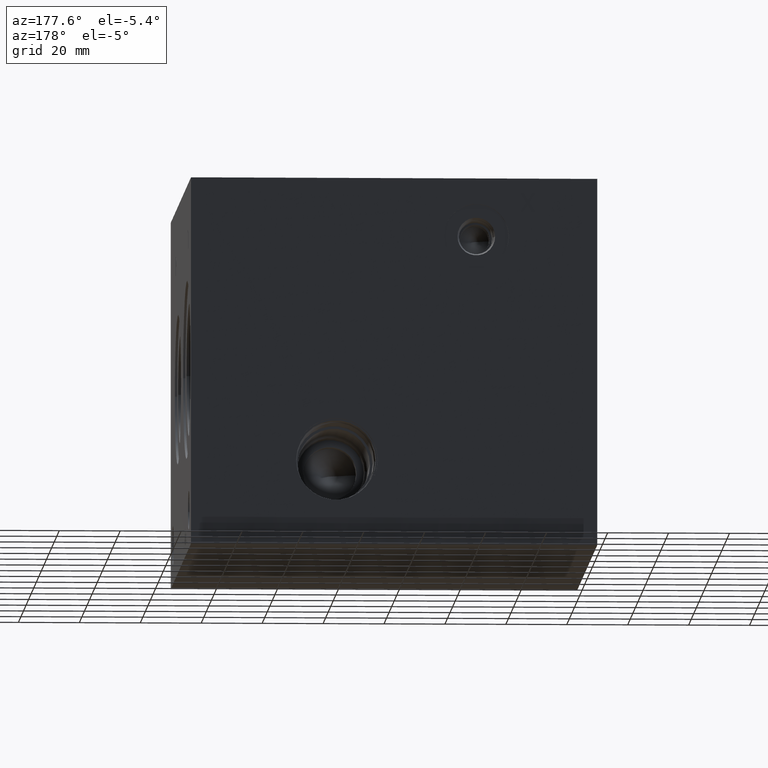
[diagram: clean part render]
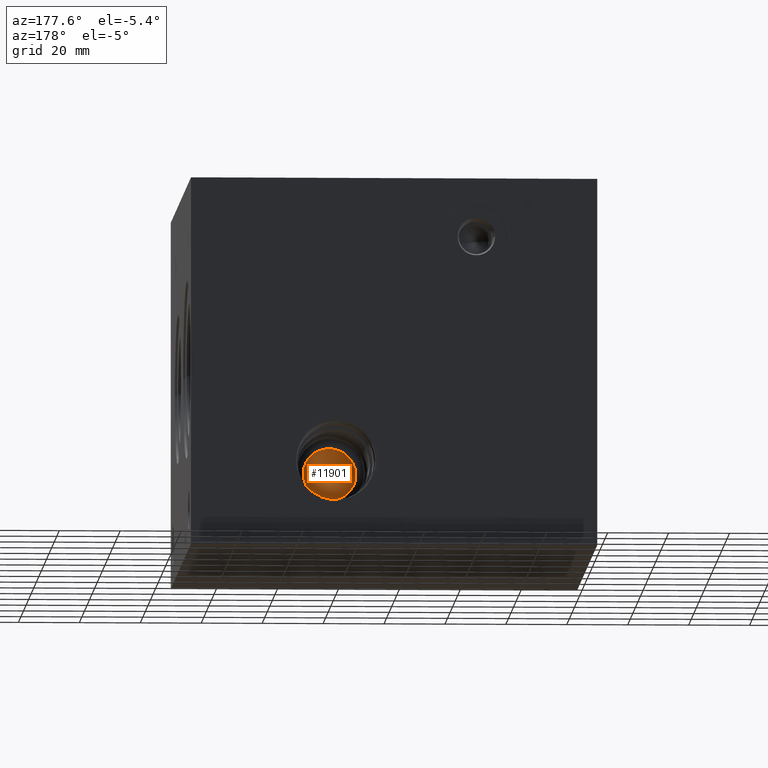
[diagram: same view with one face highlighted and labeled with its STEP entity id]
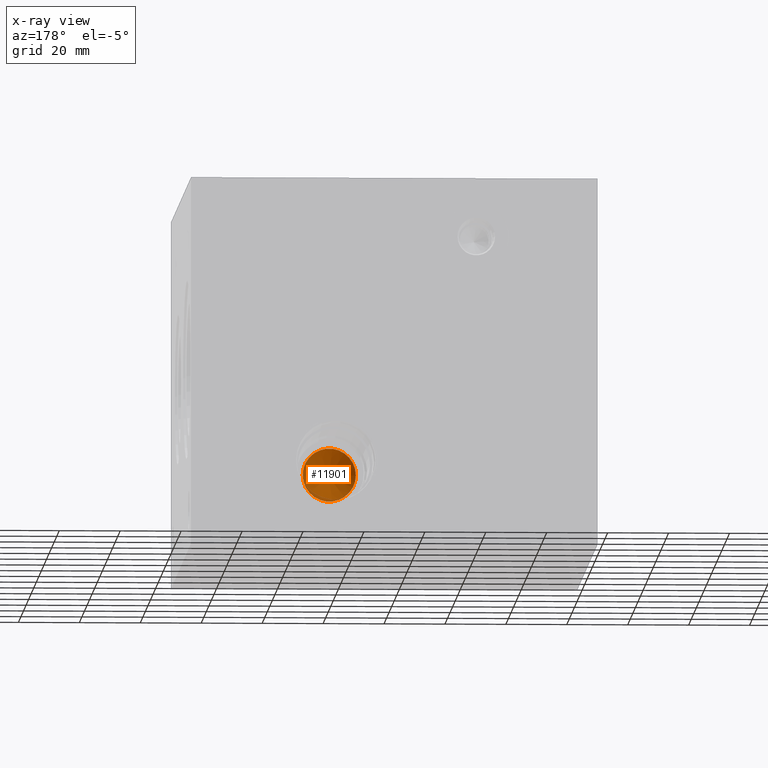
[diagram: x-ray of the same camera — body ghosted, the highlighted face saturated]
A machine part, auxiliary view. The second image highlights one B-rep face of the part: STEP entity #11901.
The next image is the same camera in x-ray: the body ghosted, the highlighted face saturated — about 4% of this face is hidden behind the body in this view.
In plain terms, the highlighted conical surface has half-angle 60 deg.
Its self-contained STEP definition (entity closure, byte-faithful):
#16=CONICAL_SURFACE('',#12441,8.73760000000001,1.04719755223275);
#190=CIRCLE('',#12439,8.73760000000001);
#191=CIRCLE('',#12440,8.73760000000001);
#1425=FACE_OUTER_BOUND('',#2105,.T.);
#2105=EDGE_LOOP('',(#9854,#9855,#9856,#9857));
#3276=LINE('',#19982,#4374);
#4374=VECTOR('',#14547,8.73760000000001);
#5380=VERTEX_POINT('',#19975);
#5381=VERTEX_POINT('',#19977);
#5382=VERTEX_POINT('',#19981);
#6947=EDGE_CURVE('',#5380,#5381,#190,.T.);
#6948=EDGE_CURVE('',#5381,#5380,#191,.T.);
#6949=EDGE_CURVE('',#5380,#5382,#3276,.T.);
#9854=ORIENTED_EDGE('',*,*,#6948,.F.);
#9855=ORIENTED_EDGE('',*,*,#6947,.F.);
#9856=ORIENTED_EDGE('',*,*,#6949,.T.);
#9857=ORIENTED_EDGE('',*,*,#6949,.F.);
#11901=ADVANCED_FACE('',(#1425),#16,.F.);
#12439=AXIS2_PLACEMENT_3D('',#19978,#14541,#14542);
#12440=AXIS2_PLACEMENT_3D('',#19979,#14543,#14544);
#12441=AXIS2_PLACEMENT_3D('',#19980,#14545,#14546);
#14541=DIRECTION('center_axis',(0.,-1.,0.));
#14542=DIRECTION('ref_axis',(1.,0.,0.));
#14543=DIRECTION('center_axis',(0.,-1.,0.));
#14544=DIRECTION('ref_axis',(1.,0.,0.));
#14545=DIRECTION('center_axis',(0.,1.,0.));
#14546=DIRECTION('ref_axis',(1.,0.,0.));
#14547=DIRECTION('',(0.866025404302513,-0.499999999102669,1.06057523935937E-16));
#19975=CARTESIAN_POINT('',(76.9874,104.9373443,27.7876));
#19977=CARTESIAN_POINT('',(94.4626,104.9373443,27.7876));
#19978=CARTESIAN_POINT('Origin',(85.725,104.9373443,27.7876));
#19979=CARTESIAN_POINT('Origin',(85.725,104.9373443,27.7876));
#19980=CARTESIAN_POINT('Origin',(85.725,104.9373443,27.7876));
#19981=CARTESIAN_POINT('',(85.725,99.8926886,27.7876));
#19982=CARTESIAN_POINT('',(76.9874,104.9373443,27.7876));